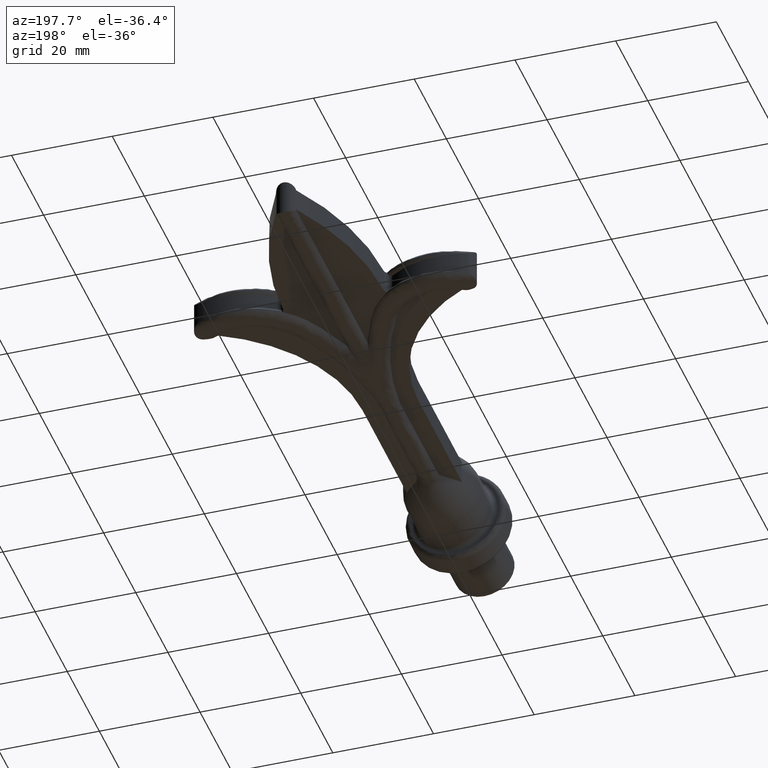
[diagram: clean part render]
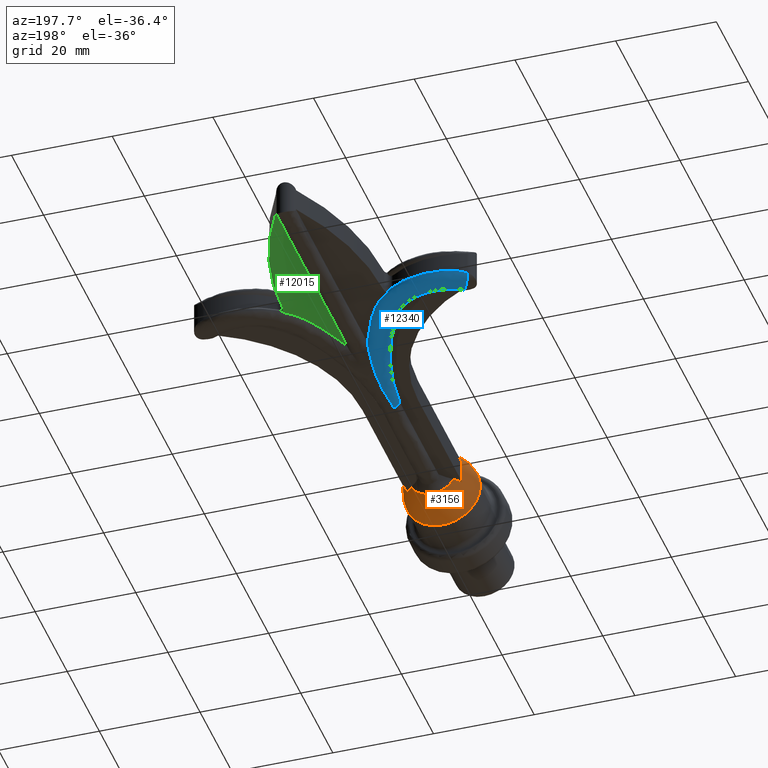
[diagram: same view with three faces highlighted in distinct colors, each labeled with its STEP entity id]
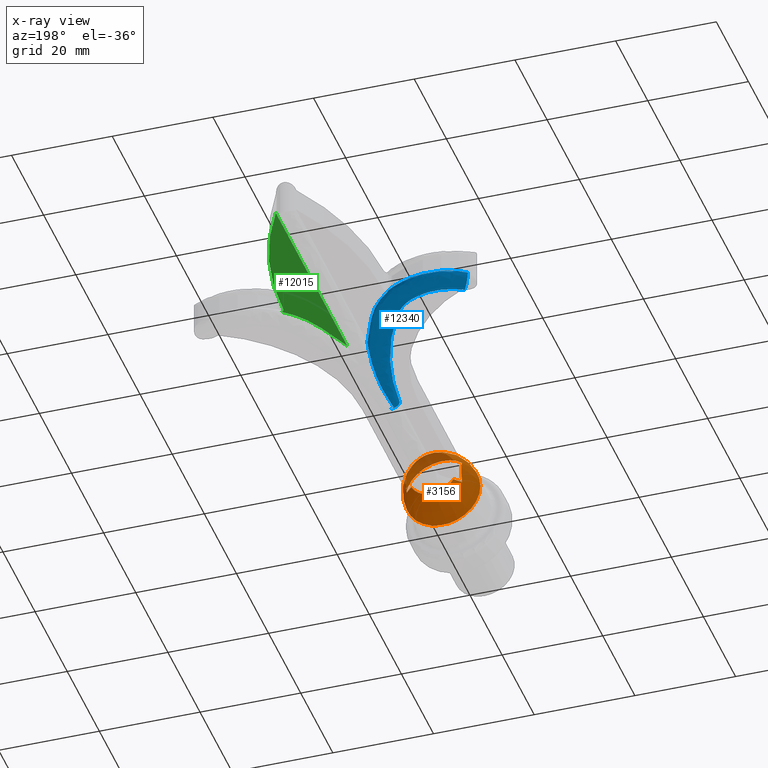
[diagram: x-ray of the same camera — body ghosted, the three highlighted faces saturated]
A machine part, auxiliary view with three faces highlighted in distinct colors.
The next image is the same camera in x-ray (body ghosted, the three faces saturated) — at least one of them is partly hidden behind the body in this view.
Their STEP definitions:

[orange] entity #3156 — the highlighted toroidal blend (fillet) surface has major radius 1.5568 mm and minor (blend) radius 9.0568 mm.
#177 = CARTESIAN_POINT ( 'NONE',  ( 5.499999999999995559, -37.92188935281078699, 2.250000000000000000 ) ) ;
#373 = VERTEX_POINT ( 'NONE', #12512 ) ;
#445 = B_SPLINE_CURVE_WITH_KNOTS ( 'NONE', 3,
 ( #2771, #10854, #13033, #4099, #616, #7410, #5226, #13119, #3961, #6275 ),
 .UNSPECIFIED., .F., .F.,
 ( 4, 2, 2, 2, 4 ),
 ( 0.02919542002190906108, 0.03036031933583524869, 0.03152521864976143978, 0.03269011796368762740, 0.03385501727761381502 ),
 .UNSPECIFIED. ) ;
#614 = CARTESIAN_POINT ( 'NONE',  ( 4.183302087937226688, -36.50000059983787537, 2.250000000000000000 ) ) ;
#616 = CARTESIAN_POINT ( 'NONE',  ( 5.499999999999996447, -37.32354830748386121, -0.4012438678380184087 ) ) ;
#1226 = CIRCLE ( 'NONE', #7114, 4.750001721993366566 ) ;
#1248 = CARTESIAN_POINT ( 'NONE',  ( 4.183302087937226688, -36.50000059983787537, -2.250000000000000000 ) ) ;
#1300 = EDGE_LOOP ( 'NONE', ( #8056 ) ) ;
#1320 = VERTEX_POINT ( 'NONE', #5261 ) ;
#1325 = CARTESIAN_POINT ( 'NONE',  ( -4.183302087937226688, -36.50000059983787537, 2.250000000000000000 ) ) ;
#1354 = CARTESIAN_POINT ( 'NONE',  ( -5.499999999999996447, -37.73190732977128192, -1.910235199813699269 ) ) ;
#1376 = CARTESIAN_POINT ( 'NONE',  ( -5.102464988398763168, -37.40998315238685024, 2.250000000000000000 ) ) ;
#1587 = ORIENTED_EDGE ( 'NONE', *, *, #5933, .T. ) ;
#1819 = EDGE_CURVE ( 'NONE', #1320, #2214, #6056, .T. ) ;
#1926 = CARTESIAN_POINT ( 'NONE',  ( -4.430159336345254495, -36.71094530625479990, -2.250000000000000000 ) ) ;
#2206 = EDGE_CURVE ( 'NONE', #12762, #373, #445, .T. ) ;
#2214 = VERTEX_POINT ( 'NONE', #13074 ) ;
#2291 = CARTESIAN_POINT ( 'NONE',  ( -5.499999999999995559, -37.92188935281078699, 2.250000000000000000 ) ) ;
#2306 = EDGE_CURVE ( 'NONE', #1320, #3359, #2853, .T. ) ;
#2365 = EDGE_CURVE ( 'NONE', #12762, #8080, #3897, .T. ) ;
#2388 = CARTESIAN_POINT ( 'NONE',  ( 5.102464988398763168, -37.40998315238685024, -2.250000000000000000 ) ) ;
#2498 = CARTESIAN_POINT ( 'NONE',  ( 5.309586929943846734, -37.66162718015450395, -2.250000000000000444 ) ) ;
#2740 = DIRECTION ( 'NONE',  ( -1.000000000000000000, 0.000000000000000000, 0.000000000000000000 ) ) ;
#2771 = CARTESIAN_POINT ( 'NONE',  ( 5.499999999999995559, -37.92188935281078699, -2.250000000000000000 ) ) ;
#2806 = CARTESIAN_POINT ( 'NONE',  ( -1.107123496014885843E-16, -36.50000059983787537, -0.000000000000000000 ) ) ;
#2853 = B_SPLINE_CURVE_WITH_KNOTS ( 'NONE', 3,
 ( #11306, #1354, #13653, #11463, #11365, #11416, #4729, #4573, #12617, #2291 ),
 .UNSPECIFIED., .F., .F.,
 ( 4, 2, 2, 2, 4 ),
 ( 0.02919542002190906108, 0.03036031933583524869, 0.03152521864976143978, 0.03269011796368762740, 0.03385501727761381502 ),
 .UNSPECIFIED. ) ;
#2988 = ORIENTED_EDGE ( 'NONE', *, *, #2365, .F. ) ;
#3156 = ADVANCED_FACE ( 'NONE', ( #6723, #11299 ), #6030, .T. ) ;
#3253 = EDGE_CURVE ( 'NONE', #3359, #6767, #8502, .T. ) ;
#3266 = DIRECTION ( 'NONE',  ( -1.000000000000000000, 1.703266759763838348E-17, 0.000000000000000000 ) ) ;
#3359 = VERTEX_POINT ( 'NONE', #8422 ) ;
#3650 = AXIS2_PLACEMENT_3D ( 'NONE', #5643, #4462, #14502 ) ;
#3739 = EDGE_CURVE ( 'NONE', #6767, #9974, #11320, .T. ) ;
#3800 = DIRECTION ( 'NONE',  ( -1.703266759763838348E-17, -1.000000000000000000, -0.000000000000000000 ) ) ;
#3870 = CARTESIAN_POINT ( 'NONE',  ( 4.430159336345254495, -36.71094530625479990, 2.250000000000000000 ) ) ;
#3897 = B_SPLINE_CURVE_WITH_KNOTS ( 'NONE', 3,
 ( #11511, #2498, #2388, #13796, #4778, #1248 ),
 .UNSPECIFIED., .F., .F.,
 ( 4, 2, 4 ),
 ( 0.005407699196652137469, 0.006367768122236821572, 0.007327837047821505675 ),
 .UNSPECIFIED. ) ;
#3961 = CARTESIAN_POINT ( 'NONE',  ( 5.499999999999996447, -37.73083094528546866, 1.908310188415820674 ) ) ;
#4071 = CARTESIAN_POINT ( 'NONE',  ( -4.183302087937226688, -36.50000059983787537, -2.250000000000000000 ) ) ;
#4099 = CARTESIAN_POINT ( 'NONE',  ( 5.499999999999994671, -37.37657339865047845, -0.7872807859139615561 ) ) ;
#4208 = ORIENTED_EDGE ( 'NONE', *, *, #3739, .F. ) ;
#4211 = CARTESIAN_POINT ( 'NONE',  ( -5.102464988398763168, -37.40998315238685024, -2.250000000000000000 ) ) ;
#4299 = VERTEX_POINT ( 'NONE', #5993 ) ;
#4462 = DIRECTION ( 'NONE',  ( 1.703266759763838348E-17, 1.000000000000000000, 0.000000000000000000 ) ) ;
#4573 = CARTESIAN_POINT ( 'NONE',  ( -5.499999999999998224, -37.57739463222294773, 1.535813378763019044 ) ) ;
#4638 = CARTESIAN_POINT ( 'NONE',  ( -4.663177568037719212, -36.93531094303977369, 2.250000000000000000 ) ) ;
#4729 = CARTESIAN_POINT ( 'NONE',  ( -5.499999999999996447, -37.37477206625073478, 0.7782981072207124651 ) ) ;
#4759 = CARTESIAN_POINT ( 'NONE',  ( 5.309586929943846734, -37.66162718015450395, 2.250000000000000444 ) ) ;
#4778 = CARTESIAN_POINT ( 'NONE',  ( 4.430159336345254495, -36.71094530625479990, -2.250000000000000000 ) ) ;
#5199 = CARTESIAN_POINT ( 'NONE',  ( -5.499999999999995559, -37.92188935281078699, -2.250000000000000000 ) ) ;
#5226 = CARTESIAN_POINT ( 'NONE',  ( 5.499999999999996447, -37.37477206625073478, 0.7782981072207124651 ) ) ;
#5261 = CARTESIAN_POINT ( 'NONE',  ( -5.499999999999995559, -37.92188935281078699, -2.250000000000000000 ) ) ;
#5643 = CARTESIAN_POINT ( 'NONE',  ( -2.214246787692989421E-16, -43.00000000000000000, 0.000000000000000000 ) ) ;
#5750 = AXIS2_PLACEMENT_3D ( 'NONE', #6197, #12866, #2740 ) ;
#5933 = EDGE_CURVE ( 'NONE', #2214, #8080, #1226, .T. ) ;
#5993 = CARTESIAN_POINT ( 'NONE',  ( -7.500000000000182965, -43.00000000000000000, 0.000000000000000000 ) ) ;
#6030 = TOROIDAL_SURFACE ( 'NONE', #13122, -1.556820713220816721, 9.056820713221000574 ) ;
#6056 = B_SPLINE_CURVE_WITH_KNOTS ( 'NONE', 3,
 ( #5199, #13091, #4211, #10868, #1926, #4071 ),
 .UNSPECIFIED., .F., .F.,
 ( 4, 2, 4 ),
 ( 0.005407699196652137469, 0.006367768122236821572, 0.007327837047821505675 ),
 .UNSPECIFIED. ) ;
#6178 = CARTESIAN_POINT ( 'NONE',  ( 4.663177568037719212, -36.93531094303977369, 2.250000000000000000 ) ) ;
#6197 = CARTESIAN_POINT ( 'NONE',  ( -1.107123496014885843E-16, -36.50000059983787537, 0.000000000000000000 ) ) ;
#6223 = ORIENTED_EDGE ( 'NONE', *, *, #1819, .T. ) ;
#6275 = CARTESIAN_POINT ( 'NONE',  ( 5.499999999999995559, -37.92188935281078699, 2.250000000000000000 ) ) ;
#6723 = FACE_OUTER_BOUND ( 'NONE', #6754, .T. ) ;
#6754 = EDGE_LOOP ( 'NONE', ( #4208, #8175, #7218, #6223, #1587, #2988, #11711, #10047 ) ) ;
#6767 = VERTEX_POINT ( 'NONE', #9509 ) ;
#7114 = AXIS2_PLACEMENT_3D ( 'NONE', #2806, #3800, #11706 ) ;
#7218 = ORIENTED_EDGE ( 'NONE', *, *, #2306, .F. ) ;
#7410 = CARTESIAN_POINT ( 'NONE',  ( 5.499999999999998224, -37.32264176370730269, 0.3911196950059269706 ) ) ;
#7458 = CARTESIAN_POINT ( 'NONE',  ( 4.183302087937226688, -36.50000059983787537, 2.250000000000000000 ) ) ;
#7673 = EDGE_CURVE ( 'NONE', #373, #9974, #10233, .T. ) ;
#8056 = ORIENTED_EDGE ( 'NONE', *, *, #8432, .T. ) ;
#8080 = VERTEX_POINT ( 'NONE', #12633 ) ;
#8175 = ORIENTED_EDGE ( 'NONE', *, *, #3253, .F. ) ;
#8179 = CARTESIAN_POINT ( 'NONE',  ( -5.309586929943846734, -37.66162718015450395, 2.250000000000000444 ) ) ;
#8422 = CARTESIAN_POINT ( 'NONE',  ( -5.499999999999995559, -37.92188935281078699, 2.250000000000000000 ) ) ;
#8432 = EDGE_CURVE ( 'NONE', #4299, #4299, #11978, .T. ) ;
#8502 = B_SPLINE_CURVE_WITH_KNOTS ( 'NONE', 3,
 ( #13773, #8179, #1376, #4638, #11576, #1325 ),
 .UNSPECIFIED., .F., .F.,
 ( 4, 2, 4 ),
 ( 0.005407699196652137469, 0.006367768122236821572, 0.007327837047821505675 ),
 .UNSPECIFIED. ) ;
#8919 = CARTESIAN_POINT ( 'NONE',  ( -2.214246787692984984E-16, -43.00000000000000000, 0.000000000000000000 ) ) ;
#9509 = CARTESIAN_POINT ( 'NONE',  ( -4.183302087937226688, -36.50000059983787537, 2.250000000000000000 ) ) ;
#9974 = VERTEX_POINT ( 'NONE', #7458 ) ;
#10047 = ORIENTED_EDGE ( 'NONE', *, *, #7673, .T. ) ;
#10233 = B_SPLINE_CURVE_WITH_KNOTS ( 'NONE', 3,
 ( #177, #4759, #10706, #6178, #3870, #614 ),
 .UNSPECIFIED., .F., .F.,
 ( 4, 2, 4 ),
 ( 0.005407699196652137469, 0.006367768122236821572, 0.007327837047821505675 ),
 .UNSPECIFIED. ) ;
#10706 = CARTESIAN_POINT ( 'NONE',  ( 5.102464988398763168, -37.40998315238685024, 2.250000000000000000 ) ) ;
#10854 = CARTESIAN_POINT ( 'NONE',  ( 5.499999999999996447, -37.73190732977128192, -1.910235199813699269 ) ) ;
#10868 = CARTESIAN_POINT ( 'NONE',  ( -4.663177568037719212, -36.93531094303977369, -2.250000000000000000 ) ) ;
#11214 = CARTESIAN_POINT ( 'NONE',  ( 5.499999999999995559, -37.92188935281078699, -2.250000000000000000 ) ) ;
#11299 = FACE_OUTER_BOUND ( 'NONE', #1300, .T. ) ;
#11306 = CARTESIAN_POINT ( 'NONE',  ( -5.499999999999995559, -37.92188935281078699, -2.250000000000000000 ) ) ;
#11320 = CIRCLE ( 'NONE', #5750, 4.750001721993366566 ) ;
#11365 = CARTESIAN_POINT ( 'NONE',  ( -5.499999999999996447, -37.32354830748386121, -0.4012438678380184087 ) ) ;
#11416 = CARTESIAN_POINT ( 'NONE',  ( -5.499999999999998224, -37.32264176370730269, 0.3911196950059269706 ) ) ;
#11463 = CARTESIAN_POINT ( 'NONE',  ( -5.499999999999994671, -37.37657339865047845, -0.7872807859139615561 ) ) ;
#11511 = CARTESIAN_POINT ( 'NONE',  ( 5.499999999999995559, -37.92188935281078699, -2.250000000000000000 ) ) ;
#11576 = CARTESIAN_POINT ( 'NONE',  ( -4.430159336345254495, -36.71094530625479990, 2.250000000000000000 ) ) ;
#11706 = DIRECTION ( 'NONE',  ( -1.000000000000000000, 0.000000000000000000, 0.000000000000000000 ) ) ;
#11711 = ORIENTED_EDGE ( 'NONE', *, *, #2206, .T. ) ;
#11978 = CIRCLE ( 'NONE', #3650, 7.500000000000182965 ) ;
#12334 = DIRECTION ( 'NONE',  ( 1.703266759763838348E-17, 1.000000000000000000, 0.000000000000000000 ) ) ;
#12512 = CARTESIAN_POINT ( 'NONE',  ( 5.499999999999995559, -37.92188935281078699, 2.250000000000000000 ) ) ;
#12617 = CARTESIAN_POINT ( 'NONE',  ( -5.499999999999996447, -37.73083094528546866, 1.908310188415820674 ) ) ;
#12633 = CARTESIAN_POINT ( 'NONE',  ( 4.183302087937226688, -36.50000059983787537, -2.250000000000000000 ) ) ;
#12762 = VERTEX_POINT ( 'NONE', #11214 ) ;
#12866 = DIRECTION ( 'NONE',  ( 1.703266759763838348E-17, 1.000000000000000000, 0.000000000000000000 ) ) ;
#13033 = CARTESIAN_POINT ( 'NONE',  ( 5.499999999999996447, -37.57916565281342969, -1.540146019186352078 ) ) ;
#13074 = CARTESIAN_POINT ( 'NONE',  ( -4.183302087937226688, -36.50000059983787537, -2.250000000000000000 ) ) ;
#13091 = CARTESIAN_POINT ( 'NONE',  ( -5.309586929943846734, -37.66162718015450395, -2.250000000000000444 ) ) ;
#13119 = CARTESIAN_POINT ( 'NONE',  ( 5.499999999999998224, -37.57739463222294773, 1.535813378763019044 ) ) ;
#13122 = AXIS2_PLACEMENT_3D ( 'NONE', #8919, #12334, #3266 ) ;
#13653 = CARTESIAN_POINT ( 'NONE',  ( -5.499999999999996447, -37.57916565281342969, -1.540146019186352078 ) ) ;
#13773 = CARTESIAN_POINT ( 'NONE',  ( -5.499999999999995559, -37.92188935281078699, 2.250000000000000000 ) ) ;
#13796 = CARTESIAN_POINT ( 'NONE',  ( 4.663177568037719212, -36.93531094303977369, -2.250000000000000000 ) ) ;
#14502 = DIRECTION ( 'NONE',  ( -1.000000000000000000, 0.000000000000000000, 0.000000000000000000 ) ) ;

[blue] entity #12340 — the highlighted face is a freeform B-spline surface patch.
#51 = CARTESIAN_POINT ( 'NONE',  ( -1.746894550110650091, -9.999999999999998224, -2.858741228396034728 ) ) ;
#94 = CARTESIAN_POINT ( 'NONE',  ( -1.999999999999999556, 10.07148951500465373, -2.250000000000000000 ) ) ;
#95 = ORIENTED_EDGE ( 'NONE', *, *, #3624, .F. ) ;
#96 = CARTESIAN_POINT ( 'NONE',  ( -24.19831013008752407, 21.06089616784457874, -2.250000000000000888 ) ) ;
#121 = CARTESIAN_POINT ( 'NONE',  ( -0.8247743503367599427, -8.993529385132280396, -3.388833680604617093 ) ) ;
#144 = CARTESIAN_POINT ( 'NONE',  ( -18.05525861028005252, 22.57733642312751599, -1.627699542584139403 ) ) ;
#186 = CARTESIAN_POINT ( 'NONE',  ( 1.385266519996193990, -5.445028741155140573, -1.911946067258261106 ) ) ;
#237 = CARTESIAN_POINT ( 'NONE',  ( -22.65377399519052304, 21.90442117620150597, -2.015428482154284495 ) ) ;
#289 = CARTESIAN_POINT ( 'NONE',  ( -17.98598335557815275, 22.93180407447128388, -1.381537182501375138 ) ) ;
#339 = CARTESIAN_POINT ( 'NONE',  ( 0.1641460125971318795, 3.634865088626292540, -1.103582228979153923 ) ) ;
#381 = CARTESIAN_POINT ( 'NONE',  ( -7.459271207350047561, 11.81233850152463205, -3.017907786898869293 ) ) ;
#385 = CARTESIAN_POINT ( 'NONE',  ( -4.725754925820213614, 4.741299643282160581, -2.250000000000000000 ) ) ;
#395 = CARTESIAN_POINT ( 'NONE',  ( -26.01821031367974868, 25.87856042835428383, -2.249999999999999556 ) ) ;
#425 = CARTESIAN_POINT ( 'NONE',  ( -2.028429648258830653, -10.00000000000000000, -2.906670661241423481 ) ) ;
#477 = CARTESIAN_POINT ( 'NONE',  ( -24.89631523859468487, 21.42124500145134292, -1.263273577513313262 ) ) ;
#518 = CARTESIAN_POINT ( 'NONE',  ( -20.45435628143824758, 24.50374495923189144, -0.8855208563671804756 ) ) ;
#522 = VERTEX_POINT ( 'NONE', #11399 ) ;
#570 = CARTESIAN_POINT ( 'NONE',  ( -6.449667963626812828, 12.19110374187995305, -3.574461334415811375 ) ) ;
#624 = CARTESIAN_POINT ( 'NONE',  ( -13.05551225055343068, 20.10660405571876908, -1.896370593148546391 ) ) ;
#674 = CARTESIAN_POINT ( 'NONE',  ( -15.54922982323943792, 21.63374368104194900, -2.810779897821942708 ) ) ;
#718 = CARTESIAN_POINT ( 'NONE',  ( 0.9355291820909846789, -10.00000000000000000, -1.014998227861704905 ) ) ;
#727 = CARTESIAN_POINT ( 'NONE',  ( -24.54829524349028347, 26.39735971179313623, -1.948013301117176521 ) ) ;
#764 = CARTESIAN_POINT ( 'NONE',  ( -5.580863361160615987, 12.60367840301554132, -0.9621086561692356875 ) ) ;
#812 = CARTESIAN_POINT ( 'NONE',  ( -23.96640646406842734, 21.19434143674955351, -2.387880008949887500 ) ) ;
#824 = CARTESIAN_POINT ( 'NONE',  ( -21.76814593452674629, 26.94389394121255066, -1.751140279966636015 ) ) ;
#910 = CARTESIAN_POINT ( 'NONE',  ( -5.401987172626819600, 12.67375316816916886, -0.9548393975191454830 ) ) ;
#961 = CARTESIAN_POINT ( 'NONE',  ( -15.30862737729663259, 22.22509697919808147, -1.404913337985567168 ) ) ;
#1116 = CARTESIAN_POINT ( 'NONE',  ( -0.7510959576214362166, 0.6784713788253978750, -3.408904152439301338 ) ) ;
#1177 = VERTEX_POINT ( 'NONE', #11445 ) ;
#1214 = VERTEX_POINT ( 'NONE', #14248 ) ;
#1284 =( BOUNDED_CURVE ( )  B_SPLINE_CURVE ( 3, ( #7922, #2343, #3399, #51 ),
 .UNSPECIFIED., .F., .T. ) 
 B_SPLINE_CURVE_WITH_KNOTS ( ( 4, 4 ),
 ( 0.000000000000000000, 1.000000000000000000 ),
 .UNSPECIFIED. ) 
 CURVE ( )  GEOMETRIC_REPRESENTATION_ITEM ( )  RATIONAL_B_SPLINE_CURVE ( ( 1.000000000000000000, 0.9785592584434598118, 0.9785592584434598118, 1.000000000000000000 ) ) 
 REPRESENTATION_ITEM ( '' )  );
#1293 = CARTESIAN_POINT ( 'NONE',  ( -24.63827033496950136, 20.88915084217177665, -2.001023440474402282 ) ) ;
#1324 = FACE_OUTER_BOUND ( 'NONE', #12142, .T. ) ;
#1342 = CARTESIAN_POINT ( 'NONE',  ( -22.69301642216343851, 22.05896169989715361, -1.758062451085776079 ) ) ;
#1399 = CARTESIAN_POINT ( 'NONE',  ( 1.930441643308337119, -10.00000000000000178, -2.582676655377620367 ) ) ;
#1441 = CARTESIAN_POINT ( 'NONE',  ( -20.42132645721334328, 22.55281775006383072, -1.694048167235552516 ) ) ;
#1485 = CARTESIAN_POINT ( 'NONE',  ( -5.646106722118942933, 18.33834818294317515, -2.250000000000000000 ) ) ;
#1488 = CARTESIAN_POINT ( 'NONE',  ( -22.65076956668649544, 21.89342035261168817, -2.049504428314659954 ) ) ;
#1495 = CARTESIAN_POINT ( 'NONE',  ( -2.919986943536946544, -2.547756134048474674, -2.250000000000001776 ) ) ;
#1539 = CARTESIAN_POINT ( 'NONE',  ( -23.07879108174414640, 23.67638721431411142, -0.9266489341151785686 ) ) ;
#1567 = CARTESIAN_POINT ( 'NONE',  ( -26.86797655706363486, 25.48685318396614008, -4.739079988170534996 ) ) ;
#1585 = CARTESIAN_POINT ( 'NONE',  ( -25.55077922795837964, 25.19024125565116989, -1.101837421388885963 ) ) ;
#1593 = CARTESIAN_POINT ( 'NONE',  ( -2.337768139618806806, -6.257629043695626336, -2.250000000000001332 ) ) ;
#1633 = CARTESIAN_POINT ( 'NONE',  ( -22.81787294985169012, 22.56706617981623708, -1.222995480864877971 ) ) ;
#1686 = CARTESIAN_POINT ( 'NONE',  ( -25.91516700378811677, 26.10899808485558538, -1.730959131522782357 ) ) ;
#1692 = CARTESIAN_POINT ( 'NONE',  ( -16.04736835590449573, 21.71527909538065515, -2.250000000000001776 ) ) ;
#1737 = CARTESIAN_POINT ( 'NONE',  ( -2.661970803240009786, -5.789958898539493859, -1.994107166040876011 ) ) ;
#1780 = CARTESIAN_POINT ( 'NONE',  ( -7.535521268206753831, 11.81861272635162230, -1.731234348712455073 ) ) ;
#1827 = CARTESIAN_POINT ( 'NONE',  ( -23.96112487650346168, 21.18104948120109654, -2.288435754803154865 ) ) ;
#1843 = EDGE_CURVE ( 'NONE', #11898, #3240, #14180, .T. ) ;
#1872 = CARTESIAN_POINT ( 'NONE',  ( 1.983757243771040679, -10.00000000000000000, -2.079579458102091660 ) ) ;
#1886 = CARTESIAN_POINT ( 'NONE',  ( -15.21547537418272711, 26.10565319523481520, -1.528223744396669304 ) ) ;
#1917 = CARTESIAN_POINT ( 'NONE',  ( -20.37848032285045008, 23.02279457361767712, -3.292293112976904190 ) ) ;
#1954 = CARTESIAN_POINT ( 'NONE',  ( -0.8281505544419913711, -9.899748878370399297, -3.387882132643734945 ) ) ;
#1957 = CARTESIAN_POINT ( 'NONE',  ( 0.6412291567347802035, -5.536385412289198449, -1.152119986985020716 ) ) ;
#2025 = CARTESIAN_POINT ( 'NONE',  ( -25.99529877153481294, 25.88793557697366765, -2.220923145417316391 ) ) ;
#2079 = CARTESIAN_POINT ( 'NONE',  ( -25.45106628192353071, 26.09867378031954388, -2.085502314152475112 ) ) ;
#2194 = CARTESIAN_POINT ( 'NONE',  ( 1.999303641126846109, -10.00000000000000000, -2.282982894340960911 ) ) ;
#2216 = CARTESIAN_POINT ( 'NONE',  ( -1.329092653989006223, 5.919913474722485525, -3.188647262910140778 ) ) ;
#2220 = CARTESIAN_POINT ( 'NONE',  ( -20.41513529999353693, 22.40313755053788469, -1.885149859055281318 ) ) ;
#2260 = CARTESIAN_POINT ( 'NONE',  ( -0.8481300889120864106, -9.543023374926791647, -3.382044246763818762 ) ) ;
#2311 = CARTESIAN_POINT ( 'NONE',  ( -0.7984979242254491849, -8.554332492686521405, -3.396158515704875480 ) ) ;
#2343 = CARTESIAN_POINT ( 'NONE',  ( -2.000000000000000444, -9.999999999999994671, -2.464235739769910616 ) ) ;
#2350 = ORIENTED_EDGE ( 'NONE', *, *, #8926, .F. ) ;
#2385 = CARTESIAN_POINT ( 'NONE',  ( -22.48052273371741450, 21.81134387635706062, -2.249999999999997780 ) ) ;
#2437 = CARTESIAN_POINT ( 'NONE',  ( -15.18233414080095223, 22.48874740051566690, -1.263384207193893438 ) ) ;
#2483 = CARTESIAN_POINT ( 'NONE',  ( -5.983458570131105603, 18.94928351144386625, -2.249999999999998224 ) ) ;
#2487 = CARTESIAN_POINT ( 'NONE',  ( -24.00169698776886307, 21.28347706732235167, -1.885806900867221136 ) ) ;
#2534 = CARTESIAN_POINT ( 'NONE',  ( -24.62850027659701269, 20.86900477099273843, -2.068558698633711668 ) ) ;
#2555 = B_SPLINE_CURVE_WITH_KNOTS ( 'NONE', 3,
 ( #4593, #3366, #14528, #12383, #4436, #13530, #12479, #5664, #13474, #6703 ),
 .UNSPECIFIED., .F., .F.,
 ( 4, 2, 2, 2, 4 ),
 ( 0.000000000000000000, 0.0003970955290795103246, 0.0007941910581590201071, 0.001191286587238529890, 0.001588382116318039564 ),
 .UNSPECIFIED. ) ;
#2561 = VERTEX_POINT ( 'NONE', #7375 ) ;
#2583 = CARTESIAN_POINT ( 'NONE',  ( -3.876456465209380919, 13.26487167913330900, -1.125080358092716004 ) ) ;
#2590 = CARTESIAN_POINT ( 'NONE',  ( -3.291206529742098930, -0.7055149666553134358, -2.249999999999999112 ) ) ;
#2632 = CARTESIAN_POINT ( 'NONE',  ( -4.721898802155293673, 16.46859264134813117, -2.249999999999999112 ) ) ;
#2637 = CARTESIAN_POINT ( 'NONE',  ( -23.97353962097497870, 21.21242300266498759, -2.050936913910250237 ) ) ;
#2682 = CARTESIAN_POINT ( 'NONE',  ( -14.70643963298623547, 23.25330710552000468, -3.650328722034779094 ) ) ;
#2728 = CARTESIAN_POINT ( 'NONE',  ( -14.12047294958236598, 24.63733114452201534, -0.9429544806555363312 ) ) ;
#2780 = CARTESIAN_POINT ( 'NONE',  ( -9.483793219406800645, 24.13034088298211088, -2.084462854298545498 ) ) ;
#2836 = CARTESIAN_POINT ( 'NONE',  ( -11.06399870107107120, 22.21911134735176319, -3.681482465448309593 ) ) ;
#2887 = CARTESIAN_POINT ( 'NONE',  ( -25.77733479117556215, 25.76102948309108953, -3.098776187840814433 ) ) ;
#2936 = CARTESIAN_POINT ( 'NONE',  ( -15.66964733405339416, 21.44164566861273258, -2.189431993116858877 ) ) ;
#2982 = CARTESIAN_POINT ( 'NONE',  ( -23.96192291912440808, 21.18308984813897311, -2.187444685451927828 ) ) ;
#3024 = CARTESIAN_POINT ( 'NONE',  ( -15.41445139154029498, 22.00078161905027230, -1.566832966522687443 ) ) ;
#3034 = CARTESIAN_POINT ( 'NONE',  ( -19.87221261943530948, 27.00647907467705267, -1.687109739304471390 ) ) ;
#3069 = CARTESIAN_POINT ( 'NONE',  ( -12.59304986706982454, 20.66603194893808393, -1.427857428819797159 ) ) ;
#3119 = CARTESIAN_POINT ( 'NONE',  ( -9.546689564418684881, 18.53260696623859261, -1.125224219321078856 ) ) ;
#3191 = EDGE_CURVE ( 'NONE', #1214, #3488, #2555, .T. ) ;
#3240 = VERTEX_POINT ( 'NONE', #11328 ) ;
#3315 = CARTESIAN_POINT ( 'NONE',  ( -0.7889487505574711568, -9.937701954723015874, -3.398711765576718058 ) ) ;
#3320 = CARTESIAN_POINT ( 'NONE',  ( -18.05525861028005252, 22.57733642312751599, -1.627699542584139403 ) ) ;
#3365 = CARTESIAN_POINT ( 'NONE',  ( -0.6347639814880823295, -1.958469581052590502, -3.435379189034770686 ) ) ;
#3366 = CARTESIAN_POINT ( 'NONE',  ( -10.47444242597680386, 24.14924188241173653, -2.115527743679268990 ) ) ;
#3399 = CARTESIAN_POINT ( 'NONE',  ( -1.913767255991321692, -9.999999999999994671, -2.671581419846950745 ) ) ;
#3488 = VERTEX_POINT ( 'NONE', #7539 ) ;
#3562 = CARTESIAN_POINT ( 'NONE',  ( -1.093026864984118385, 4.179168361879508353, -3.300909164943323759 ) ) ;
#3582 = CARTESIAN_POINT ( 'NONE',  ( -24.65992304519750533, 20.93379919787667376, -1.902925595859554564 ) ) ;
#3624 = EDGE_CURVE ( 'NONE', #2561, #1177, #1284, .T. ) ;
#3642 = CARTESIAN_POINT ( 'NONE',  ( -24.68824991110007261, 20.99220980659517366, -1.808315285439569875 ) ) ;
#3689 = CARTESIAN_POINT ( 'NONE',  ( -6.716424947122844991, 20.12315963595812818, -2.249999999999998224 ) ) ;
#3691 = CARTESIAN_POINT ( 'NONE',  ( -11.96684702448061088, 21.40154217615601340, -1.075419899241283339 ) ) ;
#3732 = CARTESIAN_POINT ( 'NONE',  ( -9.227220437918614238, 18.70524337115989510, -1.047151908742425030 ) ) ;
#3738 = CARTESIAN_POINT ( 'NONE',  ( -2.000006093207118418, -9.999999999999998224, -2.250000000000134559 ) ) ;
#3780 = CARTESIAN_POINT ( 'NONE',  ( -15.28891356819407754, 22.26654010431586528, -1.379141315894316433 ) ) ;
#3786 = CARTESIAN_POINT ( 'NONE',  ( -6.703008912361073435, 10.01589497759060521, -2.250000000000000000 ) ) ;
#3831 = CARTESIAN_POINT ( 'NONE',  ( -20.38076262851300413, 25.44230529397685103, -3.654752397464813285 ) ) ;
#3880 = CARTESIAN_POINT ( 'NONE',  ( -1.976115646617455868, -5.685912033488270900, -3.244521411726900784 ) ) ;
#3925 = CARTESIAN_POINT ( 'NONE',  ( -3.182724864841109280, 13.52183947689682952, -1.625055928455176435 ) ) ;
#3968 = CARTESIAN_POINT ( 'NONE',  ( -10.45826154561710908, 23.10813465116660836, -1.063975455315814944 ) ) ;
#4018 = CARTESIAN_POINT ( 'NONE',  ( -1.050673057986284409, -10.00000000000000000, -0.9822314698382343945 ) ) ;
#4065 = CARTESIAN_POINT ( 'NONE',  ( 1.166846535602994006, -5.474384695960947234, -1.618532660401390544 ) ) ;
#4105 = CARTESIAN_POINT ( 'NONE',  ( 2.000759941483444493, -10.00000000000000000, -2.248500216561841736 ) ) ;
#4155 = CARTESIAN_POINT ( 'NONE',  ( -24.71163632529238185, 21.04043309728372790, -2.989436672938512451 ) ) ;
#4187 =( BOUNDED_CURVE ( )  B_SPLINE_CURVE ( 3, ( #12925, #8509, #1567, #6117 ),
 .UNSPECIFIED., .F., .F. ) 
 B_SPLINE_CURVE_WITH_KNOTS ( ( 4, 4 ),
 ( 3.144929692913711161, 6.281076163550978642 ),
 .UNSPECIFIED. ) 
 CURVE ( )  GEOMETRIC_REPRESENTATION_ITEM ( )  RATIONAL_B_SPLINE_CURVE ( ( 1.000000000000000000, 0.3351487254072492150, 0.3351487254072492150, 1.000000000000000000 ) ) 
 REPRESENTATION_ITEM ( '' )  );
#4200 = CARTESIAN_POINT ( 'NONE',  ( -5.754641011179927546, 12.53532302690616440, -0.9790893295544619290 ) ) ;
#4213 = CARTESIAN_POINT ( 'NONE',  ( -16.12445592444844777, 26.40266229427007616, -1.556082222938761195 ) ) ;
#4247 = CARTESIAN_POINT ( 'NONE',  ( -24.62117058144585258, 20.85389078143339248, -2.137068140477477396 ) ) ;
#4302 = VERTEX_POINT ( 'NONE', #94 ) ;
#4386 = CARTESIAN_POINT ( 'NONE',  ( -24.62483542902143441, 20.86144777621306545, -2.102813419555594532 ) ) ;
#4412 = B_SPLINE_SURFACE_WITH_KNOTS ( 'NONE', 3, 3, ( 
 ( #2194, #13103, #7490, #13788, #12606, #11642, #10390, #144, #5880, #1488, #8198, #7128 ),
 ( #5783, #186, #339, #12555, #9289, #13696, #3780, #12759, #9246, #237, #2637, #2534 ),
 ( #10519, #7081, #6922, #12709, #3732, #10431, #13883, #8112, #5990, #8149, #8055, #1293 ),
 ( #5834, #5937, #8245, #9385, #11595, #9195, #2437, #13833, #1441, #10339, #2487, #3582 ),
 ( #1399, #4863, #11456, #4717, #13744, #3691, #9340, #289, #6982, #1342, #11550, #3642 ),
 ( #11499, #4768, #4817, #2583, #12660, #10472, #7032, #11740, #8391, #1633, #12855, #477 ),
 ( #12898, #9530, #6084, #3925, #13975, #3968, #2728, #7318, #518, #1539, #7225, #14114 ),
 ( #11789, #10667, #12995, #14020, #10616, #2780, #5008, #8339, #5054, #12944, #1585, #6185 ),
 ( #425, #3880, #14062, #7268, #9485, #13934, #8442, #4910, #7366, #6138, #1686, #9582 ),
 ( #6232, #1737, #11837, #570, #8485, #2836, #10717, #7181, #5104, #9632, #2887, #10766 ),
 ( #4018, #12809, #6039, #381, #8295, #9438, #2682, #10572, #3831, #11686, #4957, #14207 ),
 ( #718, #12079, #11937, #1780, #10860, #8675, #674, #8634, #1917, #9685, #9826, #14163 ),
 ( #14342, #1957, #5188, #7597, #10908, #624, #2936, #13126, #7414, #8533, #9878, #4155 ),
 ( #5321, #4065, #7511, #13080, #6326, #3069, #12029, #10810, #7461, #5278, #812, #7555 ),
 ( #1872, #10951, #9777, #4200, #8720, #13226, #3024, #8588, #13039, #13180, #1827, #6461 ),
 ( #6412, #6283, #14295, #764, #3119, #5235, #9727, #10994, #11889, #5144, #2982, #6370 ),
 ( #4105, #11986, #14256, #12226, #7845, #14530, #13477, #14387, #12131, #6555, #6705, #4247 ),
 ( #5369, #10117, #4439, #910, #6602, #8974, #961, #3320, #2220, #13430, #13276, #4386 ) ),
 .UNSPECIFIED., .T., .F., .F.,
 ( 4, 1, 1, 1, 1, 2, 2, 2, 1, 1, 1, 1, 4 ),
 ( 4, 1, 1, 1, 1, 1, 1, 1, 1, 4 ),
 ( 0.000000000000000000, 0.01249999999999995559, 0.02499999999999991118, 0.03750000000000008882, 0.05000000000000004441, 0.2500000000000000000, 0.5000000000000000000, 0.7500000000000000000, 0.9499999999999999556, 0.9625000000000000222, 0.9749999999999999778, 0.9875000000000000444, 1.000000000000000000 ),
 ( 0.000000000000000000, 0.2655536469427997592, 0.5293554631480518191, 0.6151437456485686628, 0.6947161987927170657, 0.7730840831116569944, 0.8311192099081239348, 0.8883450198479363458, 0.9445889349024432224, 1.000000000000000000 ),
 .UNSPECIFIED. ) ;
#4435 = CARTESIAN_POINT ( 'NONE',  ( -0.8473593562508177079, -9.818020446068674190, -3.382270362854599366 ) ) ;
#4436 = CARTESIAN_POINT ( 'NONE',  ( -10.74672409745875790, 24.02599849987280578, -1.675151683169122441 ) ) ;
#4439 = CARTESIAN_POINT ( 'NONE',  ( 0.1099169951440105153, 3.627078733415416867, -1.078745258778740723 ) ) ;
#4490 = CARTESIAN_POINT ( 'NONE',  ( -1.930480022884340396, 9.665981623857556215, -2.578859183070260741 ) ) ;
#4507 = CARTESIAN_POINT ( 'NONE',  ( -24.61697314110987378, 20.84523556333763850, -2.254171646362637116 ) ) ;
#4543 = CARTESIAN_POINT ( 'NONE',  ( -1.947945627165463600, 9.767581954121022036, -2.538460223229800583 ) ) ;
#4592 = CARTESIAN_POINT ( 'NONE',  ( -1.999999999999999556, 10.07148951500465373, -2.250000000000000000 ) ) ;
#4593 = CARTESIAN_POINT ( 'NONE',  ( -10.47475883363148341, 24.14904658344193322, -2.249999999999999556 ) ) ;
#4693 = CARTESIAN_POINT ( 'NONE',  ( -0.6598787791841492778, -1.079179211605334032, -3.430395813971617081 ) ) ;
#4717 = CARTESIAN_POINT ( 'NONE',  ( -4.876233005801971387, 12.87845692364086148, -0.9784518285621928158 ) ) ;
#4765 = CARTESIAN_POINT ( 'NONE',  ( -3.856932054002740085, 14.57011165318400714, -2.250000000000000000 ) ) ;
#4768 = CARTESIAN_POINT ( 'NONE',  ( 1.505269081967836486, -5.405307232543053786, -2.727391122472714535 ) ) ;
#4814 = CARTESIAN_POINT ( 'NONE',  ( -9.920992370167626362, 23.72872385143650575, -2.249999999999999112 ) ) ;
#4817 = CARTESIAN_POINT ( 'NONE',  ( 1.231049141920021572, 3.753767575659736178, -1.891873195735938262 ) ) ;
#4863 = CARTESIAN_POINT ( 'NONE',  ( 1.465811153085106344, -5.429030613674199479, -2.163588876784750870 ) ) ;
#4869 = CARTESIAN_POINT ( 'NONE',  ( -10.33624176415837326, 17.11654057984210198, -2.250000000000003109 ) ) ;
#4910 = CARTESIAN_POINT ( 'NONE',  ( -16.95275011779455809, 27.51746340972101734, -2.267473239405557894 ) ) ;
#4917 = CARTESIAN_POINT ( 'NONE',  ( -21.58554758046971145, 22.06112451901470095, -2.250000000000000888 ) ) ;
#4957 = CARTESIAN_POINT ( 'NONE',  ( -25.30104473961430500, 24.55976628122897409, -3.580148450669669913 ) ) ;
#5008 = CARTESIAN_POINT ( 'NONE',  ( -13.27768275932916886, 26.25689456900005680, -1.782503304868370941 ) ) ;
#5054 = CARTESIAN_POINT ( 'NONE',  ( -20.45663858710080873, 26.92325567959106181, -1.247980140855089681 ) ) ;
#5104 = CARTESIAN_POINT ( 'NONE',  ( -20.39879148022120603, 26.86539880480056652, -3.279017007889420299 ) ) ;
#5144 = CARTESIAN_POINT ( 'NONE',  ( -22.64309314196627554, 21.86617837998923974, -2.151540402112638528 ) ) ;
#5188 = CARTESIAN_POINT ( 'NONE',  ( -1.501658237078032920, 3.361397746008024878, -0.6402891743714568262 ) ) ;
#5235 = CARTESIAN_POINT ( 'NONE',  ( -12.41237421844339828, 20.88142978365464586, -1.285341955235194122 ) ) ;
#5278 = CARTESIAN_POINT ( 'NONE',  ( -22.64063114461398740, 21.86715111220897612, -2.352211353273554018 ) ) ;
#5321 = CARTESIAN_POINT ( 'NONE',  ( 1.955833726452750110, -10.00000000000000000, -1.981435972271305745 ) ) ;
#5365 = CARTESIAN_POINT ( 'NONE',  ( -0.8540926491550773214, -9.653044381900174997, -3.380290621349647751 ) ) ;
#5369 = CARTESIAN_POINT ( 'NONE',  ( 1.999303641126846109, -10.00000000000000000, -2.282982894340960911 ) ) ;
#5614 = CARTESIAN_POINT ( 'NONE',  ( -1.735392698828009728, 8.511043698880389030, -2.879936702575515373 ) ) ;
#5663 = CARTESIAN_POINT ( 'NONE',  ( -1.664991924502235321, 8.081150150582923075, -2.946182603805149736 ) ) ;
#5664 = CARTESIAN_POINT ( 'NONE',  ( -11.35047031905619264, 24.05453771702369892, -1.427759834671830763 ) ) ;
#5708 = CARTESIAN_POINT ( 'NONE',  ( -0.8170894112943596355, 1.555991863244106321, -3.392483868747679487 ) ) ;
#5709 =( BOUNDED_CURVE ( )  B_SPLINE_CURVE ( 3, ( #13869, #13963, #5865, #6171 ),
 .UNSPECIFIED., .F., .F. ) 
 B_SPLINE_CURVE_WITH_KNOTS ( ( 4, 4 ),
 ( 0.000000000000000000, 1.000000000000000000 ),
 .UNSPECIFIED. ) 
 CURVE ( )  GEOMETRIC_REPRESENTATION_ITEM ( )  RATIONAL_B_SPLINE_CURVE ( ( 1.000000000000000000, 0.9081685916369324207, 0.9081685916369324207, 1.000000000000000000 ) ) 
 REPRESENTATION_ITEM ( '' )  );
#5757 = CARTESIAN_POINT ( 'NONE',  ( -0.6352422687926116973, -4.598246563847242285, -3.435405058613094642 ) ) ;
#5783 = CARTESIAN_POINT ( 'NONE',  ( 1.997847340770247504, -10.00000000000000000, -2.317465572120080086 ) ) ;
#5834 = CARTESIAN_POINT ( 'NONE',  ( 1.966610256435111559, -10.00000000000000000, -2.485590509674203030 ) ) ;
#5847 = ORIENTED_EDGE ( 'NONE', *, *, #10388, .T. ) ;
#5865 = CARTESIAN_POINT ( 'NONE',  ( -0.7435887981399323943, -9.999999999999996447, -3.499999999999998224 ) ) ;
#5880 = CARTESIAN_POINT ( 'NONE',  ( -20.41513529999353693, 22.40313755053788469, -1.885149859055281318 ) ) ;
#5937 = CARTESIAN_POINT ( 'NONE',  ( 1.446822619493322915, -5.434067506973638828, -2.069176330081931692 ) ) ;
#5943 = CARTESIAN_POINT ( 'NONE',  ( -23.77879521761375159, 21.27693553004967697, -2.249999999999995559 ) ) ;
#5990 = CARTESIAN_POINT ( 'NONE',  ( -20.41826153258375243, 22.46951152723296730, -1.786966986400423618 ) ) ;
#5995 = CARTESIAN_POINT ( 'NONE',  ( -11.14895665378619682, 18.26262553370780140, -2.250000000000009770 ) ) ;
#6039 = CARTESIAN_POINT ( 'NONE',  ( -4.234546894825800933, 2.670612701839688796, -1.996404272259161727 ) ) ;
#6080 = CARTESIAN_POINT ( 'NONE',  ( -9.395713503163751312, 23.26475065132476061, -2.249999999999998224 ) ) ;
#6084 = CARTESIAN_POINT ( 'NONE',  ( 1.218815426725037065, 3.666581722341665905, -2.632882342165558498 ) ) ;
#6117 = CARTESIAN_POINT ( 'NONE',  ( -26.87271091490941188, 25.49661553200047948, -2.252636452654235288 ) ) ;
#6138 = CARTESIAN_POINT ( 'NONE',  ( -23.85380151575796148, 27.07101698519150546, -1.768976648477818658 ) ) ;
#6145 = CARTESIAN_POINT ( 'NONE',  ( -19.72413120687838273, 22.27856710356394032, -2.250000000000000000 ) ) ;
#6171 = CARTESIAN_POINT ( 'NONE',  ( 1.822275046699542647E-13, -9.999899012340767612, -3.500002856754159009 ) ) ;
#6185 = CARTESIAN_POINT ( 'NONE',  ( -26.49580780385042189, 24.71943318431075554, -1.089930285584679082 ) ) ;
#6192 = CARTESIAN_POINT ( 'NONE',  ( -10.59220191886514684, 17.50875892013686652, -2.250000000000008438 ) ) ;
#6232 = CARTESIAN_POINT ( 'NONE',  ( -1.970177633994882660, -10.00000000000000000, -1.527363550076654253 ) ) ;
#6283 = CARTESIAN_POINT ( 'NONE',  ( 1.312873167320049994, -5.455709696546035659, -1.788320154799647455 ) ) ;
#6284 = ORIENTED_EDGE ( 'NONE', *, *, #10109, .F. ) ;
#6286 = EDGE_CURVE ( 'NONE', #4302, #1214, #10041, .T. ) ;
#6326 = CARTESIAN_POINT ( 'NONE',  ( -9.833156537134522424, 18.37653696805102044, -1.230497935235668194 ) ) ;
#6337 = CARTESIAN_POINT ( 'NONE',  ( -26.58834281340381622, 25.62506080716702428, -2.250000000000000444 ) ) ;
#6370 = CARTESIAN_POINT ( 'NONE',  ( -24.61641914074552062, 20.84409320818435418, -2.205262919611165273 ) ) ;
#6379 = CARTESIAN_POINT ( 'NONE',  ( -25.74545084889599167, 25.98751519558470591, -2.144463043323173057 ) ) ;
#6412 = CARTESIAN_POINT ( 'NONE',  ( 1.999165855519074553, -10.00000000000000000, -2.180109676981488054 ) ) ;
#6461 = CARTESIAN_POINT ( 'NONE',  ( -24.61677185411122792, 20.84482051075516651, -2.306252604042914101 ) ) ;
#6476 = CARTESIAN_POINT ( 'NONE',  ( -15.51747638631542614, 26.21147706342360806, -1.537375530802591594 ) ) ;
#6555 = CARTESIAN_POINT ( 'NONE',  ( -22.64776513818246428, 21.88241952902186327, -2.083580374475035413 ) ) ;
#6564 = CARTESIAN_POINT ( 'NONE',  ( -25.67210180646539186, 26.01571018483321751, -2.129143538489206122 ) ) ;
#6602 = CARTESIAN_POINT ( 'NONE',  ( -9.388767710111718401, 18.61805544953372049, -1.083574775856823935 ) ) ;
#6653 = CARTESIAN_POINT ( 'NONE',  ( -0.7626597695790220399, -9.946780513416685565, -3.405681332686232299 ) ) ;
#6702 = CARTESIAN_POINT ( 'NONE',  ( 1.822275046699542647E-13, -9.999899012340767612, -3.500002856754159009 ) ) ;
#6703 = CARTESIAN_POINT ( 'NONE',  ( -11.58296119081805386, 24.18750000000000355, -1.417579424405996935 ) ) ;
#6705 = CARTESIAN_POINT ( 'NONE',  ( -23.96664801034435044, 21.19502457257676653, -2.119327766726151641 ) ) ;
#6922 = CARTESIAN_POINT ( 'NONE',  ( 0.2681489129738224841, 3.649317850448150047, -1.155413027684707439 ) ) ;
#6982 = CARTESIAN_POINT ( 'NONE',  ( -20.42432695969185374, 22.64970018241750083, -1.605888825503270612 ) ) ;
#7032 = CARTESIAN_POINT ( 'NONE',  ( -14.67622952689367999, 23.53004666013016788, -0.8907288587415980174 ) ) ;
#7081 = CARTESIAN_POINT ( 'NONE',  ( 1.415106302039858877, -5.440200536821500954, -1.974706109327271752 ) ) ;
#7087 = CARTESIAN_POINT ( 'NONE',  ( -23.13504436214022064, 21.56360661313473770, -2.249999999999995115 ) ) ;
#7128 = CARTESIAN_POINT ( 'NONE',  ( -24.62483542902143441, 20.86144777621306545, -2.102813419555594532 ) ) ;
#7181 = CARTESIAN_POINT ( 'NONE',  ( -17.20776244074456685, 26.16592160177500404, -3.477127675426160636 ) ) ;
#7188 = CARTESIAN_POINT ( 'NONE',  ( -20.19289493986696016, 22.25437071873053441, -2.249999999999998224 ) ) ;
#7221 = CARTESIAN_POINT ( 'NONE',  ( -1.999999999999999556, 10.07148951500465373, -2.250000000000000000 ) ) ;
#7225 = CARTESIAN_POINT ( 'NONE',  ( -24.61884789897032277, 22.84009828689383426, -0.9380501365361845201 ) ) ;
#7232 = CARTESIAN_POINT ( 'NONE',  ( -2.132571979410398555, -8.126393834641481462, -2.250000000000269562 ) ) ;
#7268 = CARTESIAN_POINT ( 'NONE',  ( -4.047294293470031334, 13.13114015080838293, -3.515859870545896992 ) ) ;
#7275 = CARTESIAN_POINT ( 'NONE',  ( -9.606056869822205968, 15.91418307517285236, -2.250000000000003553 ) ) ;
#7318 = CARTESIAN_POINT ( 'NONE',  ( -17.55197981994299639, 24.99250078426529598, -0.8793642191632597971 ) ) ;
#7366 = CARTESIAN_POINT ( 'NONE',  ( -20.44066856065811422, 27.68275755157245044, -1.950683274000023282 ) ) ;
#7375 = CARTESIAN_POINT ( 'NONE',  ( -2.000006093207118418, -9.999999999999998224, -2.250000000000134559 ) ) ;
#7414 = CARTESIAN_POINT ( 'NONE',  ( -20.38912438974113783, 22.27782395485864342, -2.780222716681158168 ) ) ;
#7461 = CARTESIAN_POINT ( 'NONE',  ( -20.40607271867143524, 22.29341308197831140, -2.184910187092856226 ) ) ;
#7490 = CARTESIAN_POINT ( 'NONE',  ( 0.1099169951440105153, 3.627078733415416867, -1.078745258778740723 ) ) ;
#7511 = CARTESIAN_POINT ( 'NONE',  ( -0.4059229768417577655, 3.546990882494309716, -0.8951200733611528459 ) ) ;
#7539 = CARTESIAN_POINT ( 'NONE',  ( -11.58296119081805386, 24.18750000000000355, -1.417579424405996935 ) ) ;
#7555 = CARTESIAN_POINT ( 'NONE',  ( -24.62434955295685413, 20.86044588928383092, -2.405581308067329172 ) ) ;
#7565 = CARTESIAN_POINT ( 'NONE',  ( -26.01062385125398180, 25.88167126426240827, -2.232124073764892636 ) ) ;
#7594 = CARTESIAN_POINT ( 'NONE',  ( -0.5497574092091946918, -9.981587840122758237, -3.453942945078218862 ) ) ;
#7597 = CARTESIAN_POINT ( 'NONE',  ( -6.902965409992999568, 12.08061436088750895, -1.198906448006588743 ) ) ;
#7606 = CARTESIAN_POINT ( 'NONE',  ( -26.01911763756968554, 25.87818838492925266, -2.239916922914037656 ) ) ;
#7709 = CARTESIAN_POINT ( 'NONE',  ( -25.96140368410506483, 25.90173023347025705, -2.204619015681459793 ) ) ;
#7845 = CARTESIAN_POINT ( 'NONE',  ( -9.442348564399392075, 18.58910114600469399, -1.096668939736900938 ) ) ;
#7890 = CARTESIAN_POINT ( 'NONE',  ( -0.6224160360983791440, -3.717894380796773035, -3.437934225544267530 ) ) ;
#7922 = CARTESIAN_POINT ( 'NONE',  ( -2.000006093207118418, -9.999999999999998224, -2.250000000000134559 ) ) ;
#8055 = CARTESIAN_POINT ( 'NONE',  ( -23.98246810133187878, 21.23495782725811054, -1.983558742420999943 ) ) ;
#8112 = CARTESIAN_POINT ( 'NONE',  ( -18.03516041293246985, 22.68284339042459408, -1.538938598482463282 ) ) ;
#8149 = CARTESIAN_POINT ( 'NONE',  ( -22.66100667026988802, 21.93176941151987691, -1.948366845079173792 ) ) ;
#8198 = CARTESIAN_POINT ( 'NONE',  ( -23.97009381565966279, 21.20372378762088061, -2.085132340318200495 ) ) ;
#8245 = CARTESIAN_POINT ( 'NONE',  ( 0.4106763324448918784, 3.667676481009810807, -1.239095013416890101 ) ) ;
#8252 = CARTESIAN_POINT ( 'NONE',  ( -8.313999916599685847, 13.40892815939250760, -2.250000000000000444 ) ) ;
#8291 = CARTESIAN_POINT ( 'NONE',  ( -7.112391304558636662, 20.68677348446288988, -2.249999999999999556 ) ) ;
#8295 = CARTESIAN_POINT ( 'NONE',  ( -10.07476060540627394, 18.17126878126805067, -3.368266874179758563 ) ) ;
#8299 = CARTESIAN_POINT ( 'NONE',  ( -9.169502339526454548, 15.08077979952537540, -2.250000000000001332 ) ) ;
#8339 = CARTESIAN_POINT ( 'NONE',  ( -17.06767324086776583, 27.11070670095489987, -1.497586752796943754 ) ) ;
#8345 = CARTESIAN_POINT ( 'NONE',  ( -11.45185035667598861, 18.62602086206925733, -2.250000000000036415 ) ) ;
#8391 = CARTESIAN_POINT ( 'NONE',  ( -20.44188111118632278, 23.30753202606006980, -1.106788655521255382 ) ) ;
#8398 = CARTESIAN_POINT ( 'NONE',  ( -15.61195498000185644, 21.55405025663272056, -2.249999999999998668 ) ) ;
#8442 = CARTESIAN_POINT ( 'NONE',  ( -13.21765237769347578, 26.31445228159100580, -2.579646220189424355 ) ) ;
#8485 = CARTESIAN_POINT ( 'NONE',  ( -8.842201653637049574, 18.81535705966615524, -3.678308501744723458 ) ) ;
#8509 = CARTESIAN_POINT ( 'NONE',  ( -24.62448220133751775, 20.86071941310699174, -4.740606538142392523 ) ) ;
#8533 = CARTESIAN_POINT ( 'NONE',  ( -22.66647385895476674, 22.01271293480415636, -2.940149762690034585 ) ) ;
#8588 = CARTESIAN_POINT ( 'NONE',  ( -18.08690987329524091, 22.40414028384342870, -1.813243221279624562 ) ) ;
#8634 = CARTESIAN_POINT ( 'NONE',  ( -18.01402980656238029, 22.54367844088614703, -3.071104639829020044 ) ) ;
#8644 = CARTESIAN_POINT ( 'NONE',  ( -25.85432479444428111, 25.94469044492985432, -2.171357269204156282 ) ) ;
#8675 = CARTESIAN_POINT ( 'NONE',  ( -13.06114932926702643, 20.05089751493890304, -2.528924634477312861 ) ) ;
#8684 = EDGE_CURVE ( 'NONE', #9670, #2561, #9123, .T. ) ;
#8720 = CARTESIAN_POINT ( 'NONE',  ( -9.694446526195065417, 18.45227965233609169, -1.174734321855877894 ) ) ;
#8734 = CARTESIAN_POINT ( 'NONE',  ( -23.63204448340715658, 26.64512161172747184, -1.846538488119730870 ) ) ;
#8786 = CARTESIAN_POINT ( 'NONE',  ( -12.62091818340417682, 24.93222448543499326, -1.447143095383913503 ) ) ;
#8926 = EDGE_CURVE ( 'NONE', #1177, #522, #5709, .T. ) ;
#8970 = CARTESIAN_POINT ( 'NONE',  ( -0.7297521396862751697, -7.236219239692930572, -3.414234933230396951 ) ) ;
#8974 = CARTESIAN_POINT ( 'NONE',  ( -12.30750452454150157, 21.00488104817833346, -1.222781254928566597 ) ) ;
#9020 = ORIENTED_EDGE ( 'NONE', *, *, #1843, .F. ) ;
#9027 = CARTESIAN_POINT ( 'NONE',  ( -1.877855878971818049, 9.358471240947849878, -2.686654988717040116 ) ) ;
#9053 = ORIENTED_EDGE ( 'NONE', *, *, #6286, .F. ) ;
#9123 = B_SPLINE_CURVE_WITH_KNOTS ( 'NONE', 3,
 ( #10437, #96, #5943, #7087, #10345, #2385, #10478, #4917, #13940, #7188, #6145, #12949, #11747, #14026, #11601, #1692, #8398, #10526, #10623, #10675, #14069, #8345, #5995, #6192, #4869, #7275, #8299, #8252, #12861, #3786, #13890, #385, #12814, #2590, #1495, #1593, #7232, #3738 ),
 .UNSPECIFIED., .F., .F.,
 ( 4, 2, 2, 2, 2, 2, 2, 2, 2, 2, 2, 2, 2, 2, 2, 2, 2, 2, 4 ),
 ( 1.599647270592087204E-07, 0.001412384367972311511, 0.002118496569594932512, 0.002824608771217553948, 0.004236833174462796385, 0.005649057577708038388, 0.007061281980953282127, 0.008473506384198524130, 0.009885730787443767001, 0.01129795519068900987, 0.01412240399717949388, 0.01553462840042473155, 0.01694685280366997268, 0.01977130161016044455, 0.02259575041665091641, 0.02824464802963186014, 0.03389354564261280733, 0.03954244325559375106, 0.04519134086857468785 ),
 .UNSPECIFIED. ) ;
#9195 = CARTESIAN_POINT ( 'NONE',  ( -12.08423699237343385, 21.26563531822782593, -1.116175227650189283 ) ) ;
#9246 = CARTESIAN_POINT ( 'NONE',  ( -20.41618222700446594, 22.42357151920717584, -1.851941515708046548 ) ) ;
#9254 = ORIENTED_EDGE ( 'NONE', *, *, #12022, .F. ) ;
#9289 = CARTESIAN_POINT ( 'NONE',  ( -9.335186855824044727, 18.64700975306274700, -1.070480611976746932 ) ) ;
#9340 = CARTESIAN_POINT ( 'NONE',  ( -15.11292970976348116, 22.63219669259644462, -1.203973399124293353 ) ) ;
#9380 = CARTESIAN_POINT ( 'NONE',  ( -3.024429506837891690, 12.65772292413269007, -2.249999999999999112 ) ) ;
#9385 = CARTESIAN_POINT ( 'NONE',  ( -5.047481414746151529, 12.81203092452791203, -0.9618394786859367773 ) ) ;
#9438 = CARTESIAN_POINT ( 'NONE',  ( -12.08668100305671445, 21.07310374675440556, -3.549412033460042970 ) ) ;
#9485 = CARTESIAN_POINT ( 'NONE',  ( -6.698967482130008477, 19.97352920082726868, -3.154541946541638442 ) ) ;
#9530 = CARTESIAN_POINT ( 'NONE',  ( 0.9598800596367940141, -5.434433230744014409, -3.219731933626844178 ) ) ;
#9582 = CARTESIAN_POINT ( 'NONE',  ( -26.93816174250498463, 25.63157655077806396, -1.712092162006743301 ) ) ;
#9632 = CARTESIAN_POINT ( 'NONE',  ( -23.73362437559675442, 26.63098404159872956, -3.132014494892863876 ) ) ;
#9670 = VERTEX_POINT ( 'NONE', #4507 ) ;
#9685 = CARTESIAN_POINT ( 'NONE',  ( -22.86104534553387779, 22.87910332878601238, -3.396300641186818403 ) ) ;
#9727 = CARTESIAN_POINT ( 'NONE',  ( -15.36549727178586444, 22.10519970491945330, -1.483637916626798559 ) ) ;
#9777 = CARTESIAN_POINT ( 'NONE',  ( -0.2278349961386788858, 3.575997224331086688, -0.9466558805418542333 ) ) ;
#9826 = CARTESIAN_POINT ( 'NONE',  ( -24.36911341062624459, 22.20962331247163490, -3.416361165816969248 ) ) ;
#9878 = CARTESIAN_POINT ( 'NONE',  ( -24.03331398643537042, 21.36291072156332760, -2.973089603800942449 ) ) ;
#9891 = CARTESIAN_POINT ( 'NONE',  ( -21.13954656349650207, 26.99139668730311925, -1.730320148217785237 ) ) ;
#9939 = CARTESIAN_POINT ( 'NONE',  ( -17.97321398454651842, 26.82764557976409847, -1.618780225993988964 ) ) ;
#9987 = CARTESIAN_POINT ( 'NONE',  ( -19.23156408213991853, 26.97332148050280765, -1.664595973721237687 ) ) ;
#10041 = B_SPLINE_CURVE_WITH_KNOTS ( 'NONE', 3,
 ( #7221, #11591, #9380, #4765, #12657, #2632, #10428, #1485, #2483, #3689, #8291, #12756, #13929, #6080, #4814, #13880 ),
 .UNSPECIFIED., .F., .F.,
 ( 4, 2, 2, 2, 2, 2, 2, 4 ),
 ( 0.006606490043254385769, 0.01078139490176455509, 0.01286884733101964148, 0.01495629976027472614, 0.01704375218952981080, 0.01913120461878489720, 0.02121865704803998359, 0.02330610947729506652 ),
 .UNSPECIFIED. ) ;
#10071 = CARTESIAN_POINT ( 'NONE',  ( -0.1106306295682388807, -10.00077037569061389, -3.500000000000001332 ) ) ;
#10109 = EDGE_CURVE ( 'NONE', #522, #4302, #12221, .T. ) ;
#10117 = CARTESIAN_POINT ( 'NONE',  ( 1.368120141080630292, -5.447629912781421169, -1.880685711116110603 ) ) ;
#10162 = CARTESIAN_POINT ( 'NONE',  ( -1.972408887254156529, 9.909815113014309063, -2.458679044196641517 ) ) ;
#10214 = CARTESIAN_POINT ( 'NONE',  ( -1.842035217767148847, 9.147299553863454946, -2.739645986121322263 ) ) ;
#10339 = CARTESIAN_POINT ( 'NONE',  ( -22.67535147810627549, 21.98808860120702846, -1.851312210208722941 ) ) ;
#10345 = CARTESIAN_POINT ( 'NONE',  ( -22.91865372825261105, 21.65263170368233503, -2.249999999999997335 ) ) ;
#10388 = EDGE_CURVE ( 'NONE', #9670, #3240, #4187, .T. ) ;
#10390 = CARTESIAN_POINT ( 'NONE',  ( -15.30862737729663259, 22.22509697919808147, -1.404913337985567168 ) ) ;
#10428 = CARTESIAN_POINT ( 'NONE',  ( -5.016452664498600278, 17.09870672286848858, -2.250000000000000888 ) ) ;
#10431 = CARTESIAN_POINT ( 'NONE',  ( -12.19823958235329009, 21.13294287834875007, -1.164823367633861073 ) ) ;
#10437 = CARTESIAN_POINT ( 'NONE',  ( -24.61697314110987378, 20.84523556333763850, -2.254171646362637116 ) ) ;
#10472 = CARTESIAN_POINT ( 'NONE',  ( -11.24571863066499233, 22.23230778308894529, -0.8777881961043129122 ) ) ;
#10478 = CARTESIAN_POINT ( 'NONE',  ( -22.25867018858491164, 21.88062543786392666, -2.250000000000000444 ) ) ;
#10519 = CARTESIAN_POINT ( 'NONE',  ( 1.990482847212666773, -10.00000000000000000, -2.385708320301597851 ) ) ;
#10526 = CARTESIAN_POINT ( 'NONE',  ( -14.76337510132776742, 21.17412777837628823, -2.249999999999997780 ) ) ;
#10572 = CARTESIAN_POINT ( 'NONE',  ( -17.52972322748714618, 24.66188435757574027, -3.689327173462702447 ) ) ;
#10616 = CARTESIAN_POINT ( 'NONE',  ( -6.191492107588712379, 20.26972981301726406, -2.419268304135318903 ) ) ;
#10623 = CARTESIAN_POINT ( 'NONE',  ( -14.34844947528617709, 20.95491050503660091, -2.249999999999999556 ) ) ;
#10667 = CARTESIAN_POINT ( 'NONE',  ( -0.8716206655284397531, -5.578634823807737675, -3.586626112572214087 ) ) ;
#10675 = CARTESIAN_POINT ( 'NONE',  ( -13.14684680056945609, 20.21926707694568748, -2.250000000000000000 ) ) ;
#10717 = CARTESIAN_POINT ( 'NONE',  ( -14.00620474179561548, 24.65672727687951493, -3.610527103839440421 ) ) ;
#10766 = CARTESIAN_POINT ( 'NONE',  ( -26.79156783948172915, 25.32929675959114135, -3.082280998882066747 ) ) ;
#10810 = CARTESIAN_POINT ( 'NONE',  ( -18.09714335903924010, 22.34266630139766718, -1.908826176771433625 ) ) ;
#10860 = CARTESIAN_POINT ( 'NONE',  ( -10.87855021390651267, 17.78561876821365928, -2.209485213696193995 ) ) ;
#10908 = CARTESIAN_POINT ( 'NONE',  ( -10.60938042224345423, 17.95061268326993797, -1.600058646703114817 ) ) ;
#10951 = CARTESIAN_POINT ( 'NONE',  ( 1.244935185496606866, -5.464694607167846385, -1.701106015151840234 ) ) ;
#10961 = CARTESIAN_POINT ( 'NONE',  ( -13.73324974124276387, 25.53268780416835071, -1.483167805282988416 ) ) ;
#10994 = CARTESIAN_POINT ( 'NONE',  ( -18.07317238807855730, 22.48138342559525071, -1.719248921628675486 ) ) ;
#11006 = CARTESIAN_POINT ( 'NONE',  ( -16.42982806867929213, 26.48824394125123050, -1.565648982770499353 ) ) ;
#11056 = CARTESIAN_POINT ( 'NONE',  ( -26.01821031367974868, 25.87856042835428383, -2.249999999999999556 ) ) ;
#11136 = CARTESIAN_POINT ( 'NONE',  ( -0.4406985737824424820, -9.987347466049293132, -3.471261713992855213 ) ) ;
#11179 = CARTESIAN_POINT ( 'NONE',  ( -0.8373438108153099524, -9.872255483347045057, -3.385177200527288210 ) ) ;
#11225 = CARTESIAN_POINT ( 'NONE',  ( -0.9875871604779276058, 3.306007631506265643, -3.338612280648417752 ) ) ;
#11328 = CARTESIAN_POINT ( 'NONE',  ( -26.87271091490941188, 25.49661553200047948, -2.252636452654235288 ) ) ;
#11387 = CARTESIAN_POINT ( 'NONE',  ( -1.459315394766676377, 6.787959087721364249, -3.116524587594440288 ) ) ;
#11399 = CARTESIAN_POINT ( 'NONE',  ( 1.822275046699542647E-13, -9.999899012340767612, -3.500002856754159009 ) ) ;
#11445 = CARTESIAN_POINT ( 'NONE',  ( -1.746894550110650091, -9.999999999999998224, -2.858741228396034728 ) ) ;
#11456 = CARTESIAN_POINT ( 'NONE',  ( 0.5396152933166908916, 3.682753933028929616, -1.328177999582593083 ) ) ;
#11499 = CARTESIAN_POINT ( 'NONE',  ( 1.642832799004165123, -10.00000000000000000, -3.146532602965915526 ) ) ;
#11550 = CARTESIAN_POINT ( 'NONE',  ( -24.02648759683026114, 21.34602113022098280, -1.791647846693687596 ) ) ;
#11591 = CARTESIAN_POINT ( 'NONE',  ( -2.494505320318125552, 11.37125079946095418, -2.250000000000000000 ) ) ;
#11595 = CARTESIAN_POINT ( 'NONE',  ( -9.063566896346694435, 18.79319770106364729, -1.020559078260759645 ) ) ;
#11601 = CARTESIAN_POINT ( 'NONE',  ( -16.94133092385697736, 21.97797578725353773, -2.250000000000002220 ) ) ;
#11642 = CARTESIAN_POINT ( 'NONE',  ( -12.30750452454150157, 21.00488104817833346, -1.222781254928566597 ) ) ;
#11686 = CARTESIAN_POINT ( 'NONE',  ( -23.42877219125543320, 25.34164994205602639, -3.595482368972072962 ) ) ;
#11740 = CARTESIAN_POINT ( 'NONE',  ( -17.81665322072950275, 23.76970267718911600, -0.9652721940960389269 ) ) ;
#11747 = CARTESIAN_POINT ( 'NONE',  ( -18.32851251397507042, 22.22197669324629743, -2.249999999999997335 ) ) ;
#11789 = CARTESIAN_POINT ( 'NONE',  ( -1.156218319877358791, -10.00000000000000000, -3.481361021246797360 ) ) ;
#11837 = CARTESIAN_POINT ( 'NONE',  ( -4.040993451674182779, 2.602350086077846569, -2.924515337212995725 ) ) ;
#11889 = CARTESIAN_POINT ( 'NONE',  ( -20.41201936152965146, 22.34767655075684445, -1.984967570427987216 ) ) ;
#11898 = VERTEX_POINT ( 'NONE', #395 ) ;
#11937 = CARTESIAN_POINT ( 'NONE',  ( -2.711428649128472479, 3.102266197604552911, -0.8328247424366664875 ) ) ;
#11986 = CARTESIAN_POINT ( 'NONE',  ( 1.350973762165066372, -5.450231084407701765, -1.849425354973960101 ) ) ;
#11995 = CARTESIAN_POINT ( 'NONE',  ( -24.85265459369250962, 26.30461770292796331, -1.988422133370359557 ) ) ;
#12022 = EDGE_CURVE ( 'NONE', #3488, #11898, #12123, .T. ) ;
#12029 = CARTESIAN_POINT ( 'NONE',  ( -15.45666009309885958, 21.90959350570105713, -1.653334909457967239 ) ) ;
#12038 = CARTESIAN_POINT ( 'NONE',  ( -26.30390664049340899, 25.75336827463097578, -2.250000000000000000 ) ) ;
#12041 = CARTESIAN_POINT ( 'NONE',  ( -11.58296119081805386, 24.18750000000000355, -1.417579424405996935 ) ) ;
#12079 = CARTESIAN_POINT ( 'NONE',  ( -0.2828024988935784467, -5.622952954216868804, -0.9541399073106032747 ) ) ;
#12089 = CARTESIAN_POINT ( 'NONE',  ( -26.01821031367974868, 25.87856042835428383, -2.249999999999999556 ) ) ;
#12091 = CARTESIAN_POINT ( 'NONE',  ( -25.98691219670435260, 25.89135590405369669, -2.216558972700910068 ) ) ;
#12123 = B_SPLINE_CURVE_WITH_KNOTS ( 'NONE', 3,
 ( #12041, #8786, #10961, #1886, #6476, #4213, #11006, #13193, #9939, #9987, #3034, #9891, #824, #13341, #8734, #727, #11995, #12143, #2079, #6564, #6379, #8644, #14308, #13139, #7709, #12091, #2025, #7565, #7606, #11056 ),
 .UNSPECIFIED., .F., .F.,
 ( 4, 2, 2, 2, 2, 2, 2, 2, 2, 2, 2, 2, 2, 2, 4 ),
 ( 0.000000000000000000, 0.003793096222633376285, 0.004741370278291718622, 0.005689644333950065296, 0.007586192445266760377, 0.009482740556583454591, 0.01137928866790014967, 0.01327583677921684475, 0.01422411083487519663, 0.01469824786270437951, 0.01493531637661897095, 0.01505385063357626493, 0.01511311776205490759, 0.01514275132629422545, 0.01517238489053354157 ),
 .UNSPECIFIED. ) ;
#12125 = CARTESIAN_POINT ( 'NONE',  ( -0.8490466700974876879, -9.790351625994269114, -3.381771460446505895 ) ) ;
#12131 = CARTESIAN_POINT ( 'NONE',  ( -20.41408837298261503, 22.38270358186859355, -1.918358202402516310 ) ) ;
#12142 = EDGE_LOOP ( 'NONE', ( #5847, #9020, #9254, #12449, #9053, #6284, #2350, #95, #13731 ) ) ;
#12143 = CARTESIAN_POINT ( 'NONE',  ( -25.30224947893724519, 26.15188029317184970, -2.059976686626087350 ) ) ;
#12221 = B_SPLINE_CURVE_WITH_KNOTS ( 'NONE', 3,
 ( #6702, #10071, #13379, #11136, #7594, #13426, #12278, #6653, #3315, #1954, #11179, #4435, #12125, #5365, #2260, #121, #2311, #8970, #13722, #5757, #7890, #3365, #4693, #1116, #5708, #11225, #3562, #2216, #11387, #5663, #5614, #10214, #9027, #4490, #4543, #10162, #14576, #13528, #13621, #4592 ),
 .UNSPECIFIED., .F., .F.,
 ( 4, 2, 2, 2, 2, 2, 2, 2, 2, 2, 2, 2, 2, 2, 2, 2, 2, 2, 2, 4 ),
 ( 0.000000000000000000, 0.0003313910331067513346, 0.0006627820662135026691, 0.0007456298244901904621, 0.0008284775827668783635, 0.0009113253410435662649, 0.0009941730993202539494, 0.001325564132426989509, 0.002651128264853936951, 0.005302256529707827064, 0.007953384794561715876, 0.01060451305941560556, 0.01325564132426949523, 0.01590676958912338665, 0.01855789785397727806, 0.01988346198640422030, 0.02054624405261769662, 0.02087763508572443305, 0.02104333060227779953, 0.02120902611883116254 ),
 .UNSPECIFIED. ) ;
#12226 = CARTESIAN_POINT ( 'NONE',  ( -5.462046514380741513, 12.65025225794595620, -0.9563044341158936090 ) ) ;
#12278 = CARTESIAN_POINT ( 'NONE',  ( -0.7105884268252442570, -9.960016484905132472, -3.418574239651624769 ) ) ;
#12340 = ADVANCED_FACE ( 'NONE', ( #1324 ), #4412, .T. ) ;
#12383 = CARTESIAN_POINT ( 'NONE',  ( -10.64859008722170763, 24.06077216951886300, -1.765367677158544923 ) ) ;
#12449 = ORIENTED_EDGE ( 'NONE', *, *, #3191, .F. ) ;
#12479 = CARTESIAN_POINT ( 'NONE',  ( -11.09839276762629012, 23.99648256798949930, -1.489386600986426057 ) ) ;
#12555 = CARTESIAN_POINT ( 'NONE',  ( -5.341927830872897687, 12.69725407839238152, -0.9533743609223973570 ) ) ;
#12606 = CARTESIAN_POINT ( 'NONE',  ( -9.388767710111718401, 18.61805544953372049, -1.083574775856823935 ) ) ;
#12657 = CARTESIAN_POINT ( 'NONE',  ( -4.140983253953586463, 15.20476837697043848, -2.249999999999999556 ) ) ;
#12660 = CARTESIAN_POINT ( 'NONE',  ( -7.909335266317044422, 19.40967726941924454, -0.9402178467507972259 ) ) ;
#12709 = CARTESIAN_POINT ( 'NONE',  ( -5.222767065321834323, 12.74379963401825222, -0.9533735591261615072 ) ) ;
#12756 = CARTESIAN_POINT ( 'NONE',  ( -7.963832617506120037, 21.76692377047737992, -2.249999999999999112 ) ) ;
#12759 = CARTESIAN_POINT ( 'NONE',  ( -18.04888330220630621, 22.61112496832616969, -1.597458181683624190 ) ) ;
#12809 = CARTESIAN_POINT ( 'NONE',  ( -2.114303224058812436, -5.767154547280592958, -1.321034086255972628 ) ) ;
#12814 = CARTESIAN_POINT ( 'NONE',  ( -4.191660543171381370, 2.939109039108050325, -2.250000000000000444 ) ) ;
#12855 = CARTESIAN_POINT ( 'NONE',  ( -24.20695492728201970, 21.80128136257829397, -1.249914476134828867 ) ) ;
#12861 = CARTESIAN_POINT ( 'NONE',  ( -7.897798575652227981, 12.56700727343634760, -2.250000000000000444 ) ) ;
#12898 = CARTESIAN_POINT ( 'NONE',  ( 0.8299839201999104077, -10.00000000000000000, -3.514127779270268093 ) ) ;
#12925 = CARTESIAN_POINT ( 'NONE',  ( -24.61697314110987378, 20.84523556333763850, -2.254171646362637116 ) ) ;
#12944 = CARTESIAN_POINT ( 'NONE',  ( -23.64651792746570180, 26.13893382758413253, -1.125830661900433460 ) ) ;
#12949 = CARTESIAN_POINT ( 'NONE',  ( -18.79269039057967561, 22.26236030581272018, -2.250000000000000000 ) ) ;
#12995 = CARTESIAN_POINT ( 'NONE',  ( -0.3043028189722906118, 3.234928226576806232, -3.796461871988054959 ) ) ;
#13039 = CARTESIAN_POINT ( 'NONE',  ( -20.40899957415202692, 22.31222108989851449, -2.085054761611558671 ) ) ;
#13080 = CARTESIAN_POINT ( 'NONE',  ( -5.923428931082126425, 12.46869456682123811, -1.003996236970573497 ) ) ;
#13103 = CARTESIAN_POINT ( 'NONE',  ( 1.368120141080630292, -5.447629912781421169, -1.880685711116110603 ) ) ;
#13126 = CARTESIAN_POINT ( 'NONE',  ( -18.13791759605370402, 22.06703109790449702, -2.489194145203091679 ) ) ;
#13137 = CARTESIAN_POINT ( 'NONE',  ( -26.87271091490941188, 25.49661553200047948, -2.252636452654235288 ) ) ;
#13139 = CARTESIAN_POINT ( 'NONE',  ( -25.94374917696612570, 25.90887317753631791, -2.198338849799287953 ) ) ;
#13180 = CARTESIAN_POINT ( 'NONE',  ( -22.63997629105995202, 21.85856107487997591, -2.252534262118705222 ) ) ;
#13193 = CARTESIAN_POINT ( 'NONE',  ( -17.35146987085249393, 26.71544865942527380, -1.595829123001728744 ) ) ;
#13226 = CARTESIAN_POINT ( 'NONE',  ( -12.50710470868220980, 20.76895355801833887, -1.354172316034753631 ) ) ;
#13276 = CARTESIAN_POINT ( 'NONE',  ( -23.97009381565966279, 21.20372378762088061, -2.085132340318200495 ) ) ;
#13341 = CARTESIAN_POINT ( 'NONE',  ( -23.01439248359270806, 26.77077297087561192, -1.809327753650211035 ) ) ;
#13379 = CARTESIAN_POINT ( 'NONE',  ( -0.2210169062726403677, -9.997994292929650584, -3.494292596104019655 ) ) ;
#13426 = CARTESIAN_POINT ( 'NONE',  ( -0.6838425788776076875, -9.964105240841302447, -3.424794776173007538 ) ) ;
#13430 = CARTESIAN_POINT ( 'NONE',  ( -22.65076956668649544, 21.89342035261168817, -2.049504428314659954 ) ) ;
#13474 = CARTESIAN_POINT ( 'NONE',  ( -11.47402502099891919, 24.10933931165377686, -1.414476643553557178 ) ) ;
#13477 = CARTESIAN_POINT ( 'NONE',  ( -15.32834118639918941, 22.18365385408029411, -1.430685360076817680 ) ) ;
#13528 = CARTESIAN_POINT ( 'NONE',  ( -1.993991028183335956, 10.03549112986107339, -2.353936078871035065 ) ) ;
#13530 = CARTESIAN_POINT ( 'NONE',  ( -10.97097425747700683, 23.99402529289793762, -1.537978110906352835 ) ) ;
#13621 = CARTESIAN_POINT ( 'NONE',  ( -1.999999999999999556, 10.07069710352590342, -2.305787425040668914 ) ) ;
#13696 = CARTESIAN_POINT ( 'NONE',  ( -12.27159020361795605, 21.04706442478779138, -1.202568068909723120 ) ) ;
#13722 = CARTESIAN_POINT ( 'NONE',  ( -0.6888457618797619864, -6.357268802590827050, -3.423652526577683819 ) ) ;
#13731 = ORIENTED_EDGE ( 'NONE', *, *, #8684, .F. ) ;
#13744 = CARTESIAN_POINT ( 'NONE',  ( -8.898919653337467039, 18.88138480336622749, -1.002187822941230877 ) ) ;
#13788 = CARTESIAN_POINT ( 'NONE',  ( -5.401987172626819600, 12.67375316816916886, -0.9548393975191454830 ) ) ;
#13833 = CARTESIAN_POINT ( 'NONE',  ( -18.01184477679375462, 22.80197837678593942, -1.457170911036221650 ) ) ;
#13869 = CARTESIAN_POINT ( 'NONE',  ( -1.746894550110650091, -9.999999999999998224, -2.858741228396034728 ) ) ;
#13880 = CARTESIAN_POINT ( 'NONE',  ( -10.47475883363148341, 24.14904658344193322, -2.249999999999999556 ) ) ;
#13883 = CARTESIAN_POINT ( 'NONE',  ( -15.24795615644327462, 22.35229914289645947, -1.329975465829964287 ) ) ;
#13890 = CARTESIAN_POINT ( 'NONE',  ( -5.981575602953722814, 8.281968525459351582, -2.250000000000000444 ) ) ;
#13929 = CARTESIAN_POINT ( 'NONE',  ( -8.418664750685946885, 22.28396874645196846, -2.249999999999997780 ) ) ;
#13934 = CARTESIAN_POINT ( 'NONE',  ( -9.627425864129213195, 23.90644641173014051, -2.872955024694556325 ) ) ;
#13940 = CARTESIAN_POINT ( 'NONE',  ( -21.12685482937731152, 22.14551076079942149, -2.249999999999998668 ) ) ;
#13963 = CARTESIAN_POINT ( 'NONE',  ( -1.384750386415573242, -9.999999999999996447, -3.264617898375322014 ) ) ;
#13975 = CARTESIAN_POINT ( 'NONE',  ( -6.995281716088951995, 19.88407979996286912, -1.260486643651753891 ) ) ;
#14020 = CARTESIAN_POINT ( 'NONE',  ( -3.106474803984404787, 13.51556525206983217, -2.911729366641588879 ) ) ;
#14026 = CARTESIAN_POINT ( 'NONE',  ( -17.40307058314913391, 22.08023255681069585, -2.249999999999997335 ) ) ;
#14062 = CARTESIAN_POINT ( 'NONE',  ( -1.871832753549289130, 2.913804294512897464, -3.917994145229519720 ) ) ;
#14069 = CARTESIAN_POINT ( 'NONE',  ( -12.42029254657042969, 19.63991412580459084, -2.250000000000036859 ) ) ;
#14114 = CARTESIAN_POINT ( 'NONE',  ( -25.38313255906372845, 22.42507282063571949, -0.9437082161729408725 ) ) ;
#14163 = CARTESIAN_POINT ( 'NONE',  ( -25.11752299891844942, 21.87738017638413979, -3.426316611016624769 ) ) ;
#14180 = B_SPLINE_CURVE_WITH_KNOTS ( 'NONE', 3,
 ( #12089, #12038, #6337, #13137 ),
 .UNSPECIFIED., .F., .F.,
 ( 4, 4 ),
 ( 0.03979605111757839042, 0.04072841699986464586 ),
 .UNSPECIFIED. ) ;
#14207 = CARTESIAN_POINT ( 'NONE',  ( -26.23019824370513930, 24.17174054005917583, -3.572538680428362756 ) ) ;
#14248 = CARTESIAN_POINT ( 'NONE',  ( -10.47475883363148341, 24.14904658344193322, -2.249999999999999556 ) ) ;
#14256 = CARTESIAN_POINT ( 'NONE',  ( 0.05568797769088915106, 3.619292378204540750, -1.053908288578327523 ) ) ;
#14295 = CARTESIAN_POINT ( 'NONE',  ( -0.05518480514292863764, 3.602892683643559746, -1.007325706563750201 ) ) ;
#14308 = CARTESIAN_POINT ( 'NONE',  ( -25.89047156668734573, 25.93030751397204980, -2.180885140772495845 ) ) ;
#14342 = CARTESIAN_POINT ( 'NONE',  ( 1.716218652508794795, -10.00000000000000000, -1.408882310923131431 ) ) ;
#14387 = CARTESIAN_POINT ( 'NONE',  ( -18.06163391835379528, 22.54354787792885872, -1.657940903484654172 ) ) ;
#14528 = CARTESIAN_POINT ( 'NONE',  ( -10.51227606014933968, 24.12377902168135080, -1.985787454223081117 ) ) ;
#14530 = CARTESIAN_POINT ( 'NONE',  ( -12.34341884546504708, 20.96269767156887198, -1.242994440947410073 ) ) ;
#14576 = CARTESIAN_POINT ( 'NONE',  ( -1.980305355098926245, 9.955703304162607736, -2.429022797495678621 ) ) ;

[green] entity #12015 — the highlighted planar face has unit normal (0, -0, 1).
#349 = CARTESIAN_POINT ( 'NONE',  ( 10.47475883363148341, 24.14904658344193322, -2.249999999999999556 ) ) ;
#743 = CARTESIAN_POINT ( 'NONE',  ( 1.999999999999999556, 10.07148951500465373, -2.250000000000000000 ) ) ;
#872 = PLANE ( 'NONE',  #7245 ) ;
#924 = CARTESIAN_POINT ( 'NONE',  ( 5.646106722118942933, 18.33834818294317515, -2.250000000000000000 ) ) ;
#972 = CARTESIAN_POINT ( 'NONE',  ( 9.920992370167626362, 23.72872385143650575, -2.249999999999999112 ) ) ;
#1626 = AXIS2_PLACEMENT_3D ( 'NONE', #11895, #2940, #13087 ) ;
#1935 = EDGE_CURVE ( 'NONE', #3527, #3718, #4521, .T. ) ;
#2076 = CARTESIAN_POINT ( 'NONE',  ( 8.418664750685946885, 22.28396874645196846, -2.249999999999997780 ) ) ;
#2447 = VERTEX_POINT ( 'NONE', #12864 ) ;
#2940 = DIRECTION ( 'NONE',  ( 0.000000000000000000, 0.000000000000000000, -1.000000000000000000 ) ) ;
#3020 = VECTOR ( 'NONE', #7164, 1000.000000000000000 ) ;
#3084 = DIRECTION ( 'NONE',  ( -1.000000000000000000, 0.000000000000000000, 0.000000000000000000 ) ) ;
#3139 = DIRECTION ( 'NONE',  ( -1.000000000000000000, 0.000000000000000000, 0.000000000000000000 ) ) ;
#3313 = ORIENTED_EDGE ( 'NONE', *, *, #5466, .F. ) ;
#3527 = VERTEX_POINT ( 'NONE', #743 ) ;
#3718 = VERTEX_POINT ( 'NONE', #349 ) ;
#4165 = CARTESIAN_POINT ( 'NONE',  ( -4.428493575385978843E-16, 54.00000000000000000, -2.250000000000000000 ) ) ;
#4306 = CARTESIAN_POINT ( 'NONE',  ( 2.494505320318125552, 11.37125079946095418, -2.250000000000000000 ) ) ;
#4409 = DIRECTION ( 'NONE',  ( -0.000000000000000000, -0.000000000000000000, 1.000000000000000000 ) ) ;
#4521 = B_SPLINE_CURVE_WITH_KNOTS ( 'NONE', 3,
 ( #6715, #4306, #12189, #5471, #6614, #5429, #14448, #924, #8835, #6761, #14490, #7804, #2076, #7758, #972, #10033 ),
 .UNSPECIFIED., .F., .F.,
 ( 4, 2, 2, 2, 2, 2, 2, 4 ),
 ( 0.006606490043254385769, 0.01078139490176455509, 0.01286884733101964148, 0.01495629976027472614, 0.01704375218952981080, 0.01913120461878489720, 0.02121865704803998359, 0.02330610947729506652 ),
 .UNSPECIFIED. ) ;
#4526 = EDGE_LOOP ( 'NONE', ( #11948, #12317, #14235, #3313 ) ) ;
#5429 = CARTESIAN_POINT ( 'NONE',  ( 4.721898802155293673, 16.46859264134813117, -2.249999999999999112 ) ) ;
#5466 = EDGE_CURVE ( 'NONE', #10656, #3527, #8831, .T. ) ;
#5471 = CARTESIAN_POINT ( 'NONE',  ( 3.856932054002740085, 14.57011165318400714, -2.250000000000000000 ) ) ;
#6614 = CARTESIAN_POINT ( 'NONE',  ( 4.140983253953586463, 15.20476837697043848, -2.249999999999999556 ) ) ;
#6715 = CARTESIAN_POINT ( 'NONE',  ( 1.999999999999999556, 10.07148951500465373, -2.250000000000000000 ) ) ;
#6761 = CARTESIAN_POINT ( 'NONE',  ( 6.716424947122844991, 20.12315963595812818, -2.249999999999998224 ) ) ;
#6975 = EDGE_CURVE ( 'NONE', #2447, #10656, #8821, .T. ) ;
#7164 = DIRECTION ( 'NONE',  ( 0.000000000000000000, -1.000000000000000000, 0.000000000000000000 ) ) ;
#7245 = AXIS2_PLACEMENT_3D ( 'NONE', #4165, #7658, #3084 ) ;
#7658 = DIRECTION ( 'NONE',  ( 0.000000000000000000, -0.000000000000000000, 1.000000000000000000 ) ) ;
#7758 = CARTESIAN_POINT ( 'NONE',  ( 9.395713503163751312, 23.26475065132476061, -2.249999999999998224 ) ) ;
#7804 = CARTESIAN_POINT ( 'NONE',  ( 7.963832617506120037, 21.76692377047737992, -2.249999999999999112 ) ) ;
#8820 = EDGE_CURVE ( 'NONE', #3718, #2447, #9686, .T. ) ;
#8821 = CIRCLE ( 'NONE', #9087, 60.00000000000000711 ) ;
#8831 = LINE ( 'NONE', #9279, #3020 ) ;
#8835 = CARTESIAN_POINT ( 'NONE',  ( 5.983458570131105603, 18.94928351144386625, -2.249999999999998224 ) ) ;
#9087 = AXIS2_PLACEMENT_3D ( 'NONE', #12252, #4409, #3139 ) ;
#9279 = CARTESIAN_POINT ( 'NONE',  ( 1.999999999999999556, 64.00000000000000000, -2.250000000000000000 ) ) ;
#9686 = CIRCLE ( 'NONE', #1626, 1.000000000000000888 ) ;
#10033 = CARTESIAN_POINT ( 'NONE',  ( 10.47475883363148341, 24.14904658344193322, -2.249999999999999556 ) ) ;
#10656 = VERTEX_POINT ( 'NONE', #10887 ) ;
#10887 = CARTESIAN_POINT ( 'NONE',  ( 2.000000000000001776, 54.53942867862023292, -2.250000000000000000 ) ) ;
#11895 = CARTESIAN_POINT ( 'NONE',  ( 11.00000000000000000, 25.00000000000000000, -2.250000000000000000 ) ) ;
#11948 = ORIENTED_EDGE ( 'NONE', *, *, #6975, .F. ) ;
#12015 = ADVANCED_FACE ( 'NONE', ( #14554 ), #872, .F. ) ;
#12189 = CARTESIAN_POINT ( 'NONE',  ( 3.024429506837891690, 12.65772292413269007, -2.249999999999999112 ) ) ;
#12252 = CARTESIAN_POINT ( 'NONE',  ( -49.99871419386055749, 24.60393599543220589, -2.250000000000000000 ) ) ;
#12317 = ORIENTED_EDGE ( 'NONE', *, *, #8820, .F. ) ;
#12864 = CARTESIAN_POINT ( 'NONE',  ( 10.00002107878916924, 24.99350714746610080, -2.250000000000000000 ) ) ;
#13087 = DIRECTION ( 'NONE',  ( 1.000000000000000000, 0.000000000000000000, 0.000000000000000000 ) ) ;
#14235 = ORIENTED_EDGE ( 'NONE', *, *, #1935, .F. ) ;
#14448 = CARTESIAN_POINT ( 'NONE',  ( 5.016452664498600278, 17.09870672286848858, -2.250000000000000888 ) ) ;
#14490 = CARTESIAN_POINT ( 'NONE',  ( 7.112391304558636662, 20.68677348446288988, -2.249999999999999556 ) ) ;
#14554 = FACE_OUTER_BOUND ( 'NONE', #4526, .T. ) ;